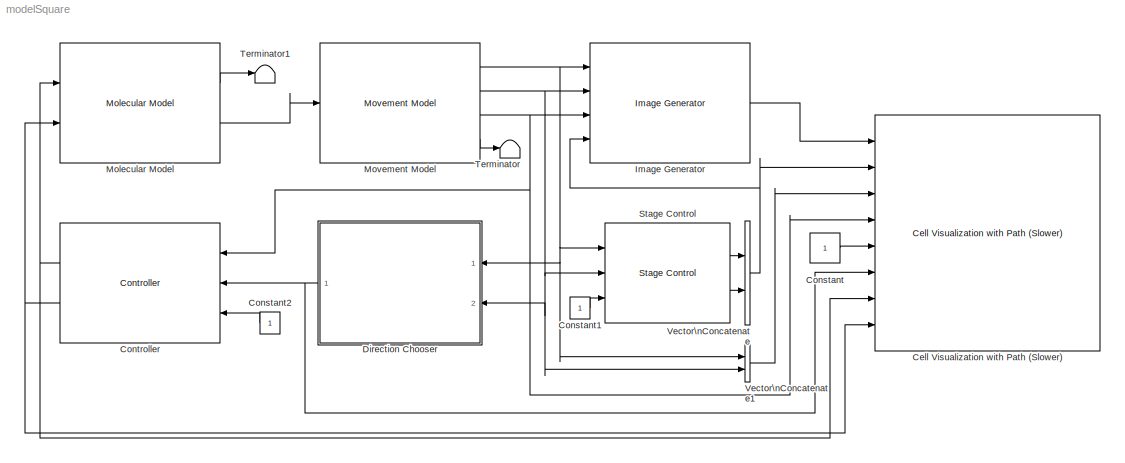
MODEL modelSquare
KIND model
BLOCK [Reference] Cell Visualization with Path (Slower)  REF=LemmingToolbox/Cell Visualization with Path (Slower)
  FunctionWithSeparateData = off
  Ports = [8]
  RTWMemSecDataConstants = Inherit from model
  RTWMemSecDataInternal = Inherit from model
  RTWMemSecDataParameters = Inherit from model
  RTWMemSecFuncExecute = Inherit from model
  RTWMemSecFuncInitTerm = Inherit from model
  SID = 1
  ShowPortLabels = FromPortIcon
  SourceBlock = LemmingToolbox/Cell Visualization with Path (Slower)
  SourceType = Lemming Path Plotter
  SystemSampleTime = -1
  binning = 2
  coneAngle = pi/4
  coneWidth = 150
  frameHeight = 100
  frameWidth = 131
  imageDim = [1344,1024]
  maxNumCells = 1
  maxPathDimensions = [-4, -4, 14, 14]
  outputFilename = outWithPath.avi
  pathLength = 30
  referenceX = [0, 0, 10, 10, 0]
  referenceY = [0, 10, 10, 0, 0]
  sampleTimes = [0.3, 0.1]
BLOCK [Constant] Constant
  OutDataTypeStr = uint32
  SID = 2
BLOCK [Constant] Constant1
  SID = 3
BLOCK [Constant] Constant2
  OutDataTypeStr = boolean
  SID = 4
BLOCK [Reference] Controller  REF=LemmingToolbox/Controller
  Ports = [3, 2]
  SID = 5
  SourceBlock = LemmingToolbox/Controller
  controller = @controllerHysteresis
  sampleTimes = [0.3, 0.1]
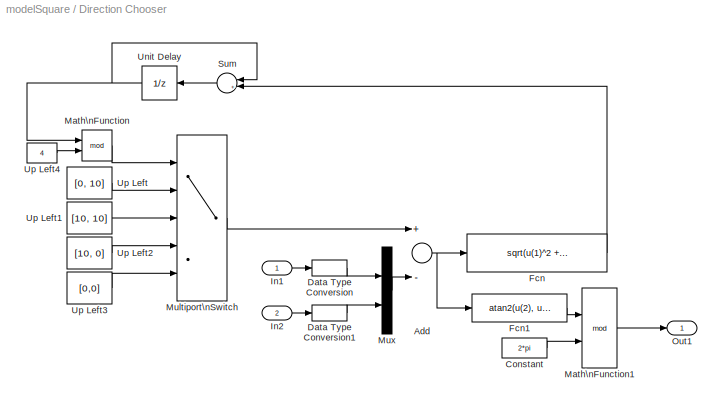
BLOCK [SubSystem] Direction Chooser
  Ports = [2, 1]
  RequestExecContextInheritance = off
  SID = 6
BLOCK [Sum] Direction Chooser/Add
  InputSameDT = off
  Inputs = +-
  OutDataTypeStr = Inherit: Inherit via internal rule
  Ports = [2, 1]
  SID = 9
  SaturateOnIntegerOverflow = off
BLOCK [Constant] Direction Chooser/Constant
  SID = 10
  Value = 2*pi
BLOCK [DataTypeConversion] Direction Chooser/Data Type Conversion
  OutDataTypeStr = double
  RndMeth = Floor
  SID = 11
  SampleTime = 0.3
  SaturateOnIntegerOverflow = off
BLOCK [DataTypeConversion] Direction Chooser/Data Type Conversion1
  OutDataTypeStr = double
  RndMeth = Floor
  SID = 12
  SampleTime = 0.3
  SaturateOnIntegerOverflow = off
BLOCK [Fcn] Direction Chooser/Fcn
  Expr = sqrt(u(1)^2 + u(2)^2) < 1
  SID = 13
BLOCK [Fcn] Direction Chooser/Fcn1
  Expr = atan2(u(2), u(1))
  SID = 14
BLOCK [Inport] Direction Chooser/In1
  IconDisplay = Port number
  SID = 7
BLOCK [Inport] Direction Chooser/In2
  IconDisplay = Port number
  Port = 2
  SID = 8
BLOCK [Math] Direction Chooser/Math\nFunction
  Operator = mod
  Ports = [2, 1]
  SID = 15
BLOCK [Math] Direction Chooser/Math\nFunction1
  Operator = mod
  Ports = [2, 1]
  SID = 16
BLOCK [MultiPortSwitch] Direction Chooser/Multiport\nSwitch
  DataPortOrder = Zero-based contiguous
  InputSameDT = off
  Inputs = 4
  Ports = [5, 1]
  SID = 17
  SaturateOnIntegerOverflow = off
  zeroidx = on
BLOCK [Mux] Direction Chooser/Mux
  DisplayOption = bar
  Inputs = 2
  Ports = [2, 1]
  SID = 18
BLOCK [Outport] Direction Chooser/Out1
  IconDisplay = Port number
  SID = 26
BLOCK [Sum] Direction Chooser/Sum
  IconShape = round
  InputSameDT = off
  Inputs = |++
  OutDataTypeStr = Inherit: Inherit via internal rule
  Ports = [2, 1]
  SID = 19
  SaturateOnIntegerOverflow = off
BLOCK [UnitDelay] Direction Chooser/Unit Delay
  SID = 20
  SampleTime = 0.3
BLOCK [Constant] Direction Chooser/Up Left
  SID = 21
  Value = [0, 10]
BLOCK [Constant] Direction Chooser/Up Left1
  SID = 22
  Value = [10, 10]
BLOCK [Constant] Direction Chooser/Up Left2
  SID = 23
  Value = [10, 0]
BLOCK [Constant] Direction Chooser/Up Left3
  SID = 24
  Value = [0,0]
BLOCK [Constant] Direction Chooser/Up Left4
  SID = 25
  Value = 4
BLOCK [Reference] Image Generator  REF=LemmingToolbox/Image Generator
  Ports = [4, 1]
  SID = 27
  SourceBlock = LemmingToolbox/Image Generator
  binning = 2
  numCells = 1
  sampleTime = [0.3, 0.1]
BLOCK [Reference] Molecular Model  REF=LemmingToolbox/Molecular Model
  Anker = 80
  AnkerProt = 57
  CheX = 42
  Ports = [2, 2]
  SID = 28
  SourceBlock = LemmingToolbox/Molecular Model
  asp = 1e-3
  cheSpeciesAttachedTo = CheX-PhyB & PIF3-Anker
  controlledCheSpecies = CheY
  molecModel = Spiro
  useOrgParameters = off
BLOCK [Reference] Movement Model  REF=LemmingToolbox/Movement Model
  Ports = [1, 4]
  SID = 29
  SourceBlock = LemmingToolbox/Movement Model
  binning = 2
  imageDim = [1344,1024]
  initialCondition = [0, 0, pi/3]
  pixelSize = 6.45 / 40
  sampleTimes = [0.03, 0]
BLOCK [Reference] Stage Control  REF=LemmingToolbox/Stage Control
  FunctionWithSeparateData = off
  Ports = [3, 2]
  RTWMemSecDataConstants = Inherit from model
  RTWMemSecDataInternal = Inherit from model
  RTWMemSecDataParameters = Inherit from model
  RTWMemSecFuncExecute = Inherit from model
  RTWMemSecFuncInitTerm = Inherit from model
  SID = 30
  ShowPortLabels = FromPortIcon
  SourceBlock = LemmingToolbox/Stage Control
  SystemSampleTime = -1
  activate = on
  border = 0.25
  controlMicroscope = off
  cooldown = 0
  initialCondition = [-0.5, -0.5]
  sampleTimes = [0.3, 0.1]
BLOCK [Terminator] Terminator
  SID = 31
BLOCK [Terminator] Terminator1
  SID = 32
BLOCK [Concatenate] Vector\nConcatenate
  ConcatenateDimension = 2
  Ports = [2, 1]
  SID = 33
BLOCK [Concatenate] Vector\nConcatenate1
  ConcatenateDimension = 2
  Mode = Multidimensional array
  Ports = [2, 1]
  SID = 34
LINE Constant1:1 -> Stage Control:3
LINE Constant2:1 -> Controller:3
LINE Constant:1 -> Cell Visualization with Path (Slower):5
NET Controller:1 -> Cell Visualization with Path (Slower):7, Molecular Model:1
NET Controller:2 -> Cell Visualization with Path (Slower):8, Molecular Model:2
NET Direction Chooser/Add:1 -> Direction Chooser/Fcn1:1, Direction Chooser/Fcn:1
LINE Direction Chooser/Constant:1 -> Direction Chooser/Math\nFunction1:2
LINE Direction Chooser/Data Type Conversion1:1 -> Direction Chooser/Mux:2
LINE Direction Chooser/Data Type Conversion:1 -> Direction Chooser/Mux:1
LINE Direction Chooser/Fcn1:1 -> Direction Chooser/Math\nFunction1:1
LINE Direction Chooser/Fcn:1 -> Direction Chooser/Sum:2
LINE Direction Chooser/In1:1 -> Direction Chooser/Data Type Conversion:1
LINE Direction Chooser/In2:1 -> Direction Chooser/Data Type Conversion1:1
LINE Direction Chooser/Math\nFunction1:1 -> Direction Chooser/Out1:1
LINE Direction Chooser/Math\nFunction:1 -> Direction Chooser/Multiport\nSwitch:1
LINE Direction Chooser/Multiport\nSwitch:1 -> Direction Chooser/Add:1
LINE Direction Chooser/Mux:1 -> Direction Chooser/Add:2
LINE Direction Chooser/Sum:1 -> Direction Chooser/Unit Delay:1
NET Direction Chooser/Unit Delay:1 -> Direction Chooser/Math\nFunction:1, Direction Chooser/Sum:1
LINE Direction Chooser/Up Left1:1 -> Direction Chooser/Multiport\nSwitch:3
LINE Direction Chooser/Up Left2:1 -> Direction Chooser/Multiport\nSwitch:4
LINE Direction Chooser/Up Left3:1 -> Direction Chooser/Multiport\nSwitch:5
LINE Direction Chooser/Up Left4:1 -> Direction Chooser/Math\nFunction:2
LINE Direction Chooser/Up Left:1 -> Direction Chooser/Multiport\nSwitch:2
NET Direction Chooser:1 -> Cell Visualization with Path (Slower):6, Controller:2
LINE Image Generator:1 -> Cell Visualization with Path (Slower):1
LINE Molecular Model:1 -> Terminator1:1
LINE Molecular Model:2 -> Movement Model:1
NET Movement Model:1 -> Direction Chooser:1, Image Generator:1, Stage Control:1, Vector\nConcatenate1:1
NET Movement Model:2 -> Direction Chooser:2, Image Generator:2, Stage Control:2, Vector\nConcatenate1:2
NET Movement Model:3 -> Cell Visualization with Path (Slower):4, Controller:1, Image Generator:3
LINE Movement Model:4 -> Terminator:1
LINE Stage Control:1 -> Vector\nConcatenate:1
LINE Stage Control:2 -> Vector\nConcatenate:2
LINE Vector\nConcatenate1:1 -> Cell Visualization with Path (Slower):3
NET Vector\nConcatenate:1 -> Cell Visualization with Path (Slower):2, Image Generator:4
note: NET lines group one-source signal fan-out (src -> all destinations, sorted); 1:1 wires keep LINE
